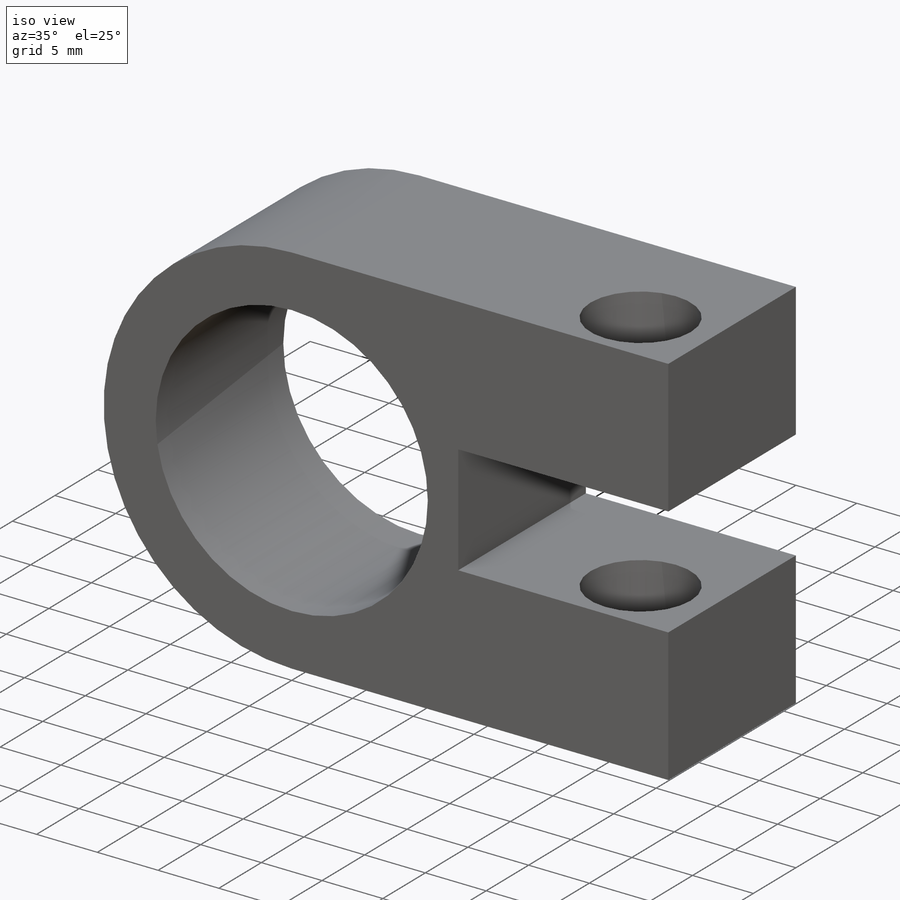
[diagram: iso view]
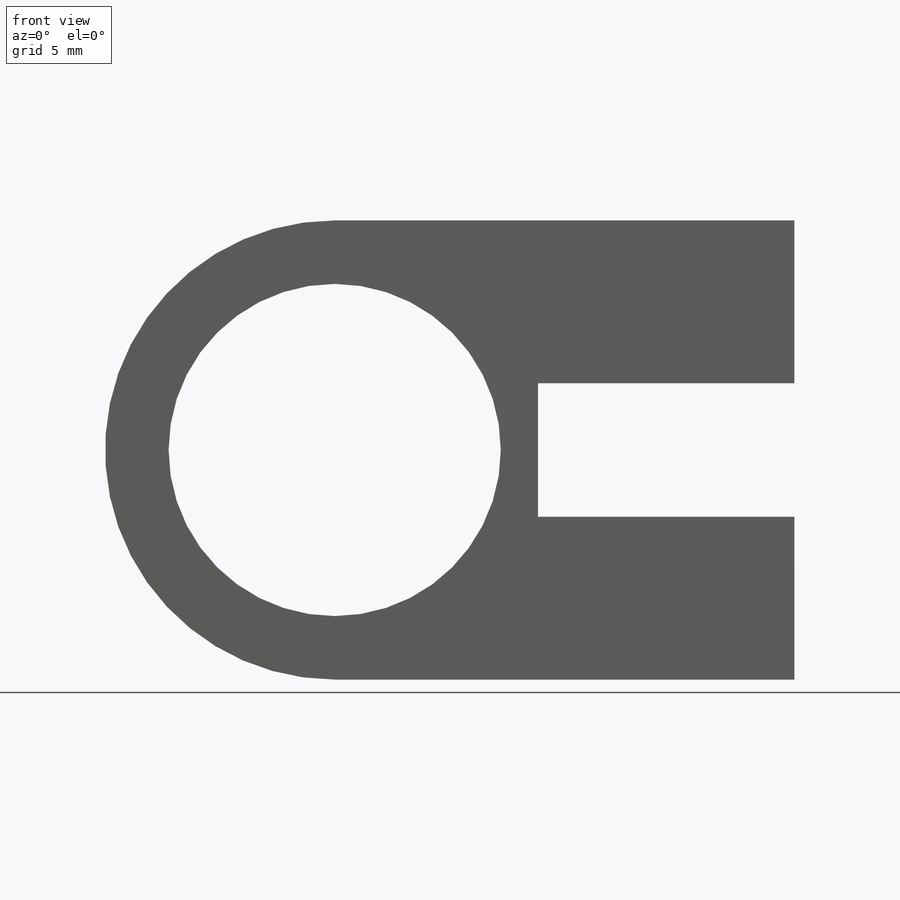
[diagram: front view]
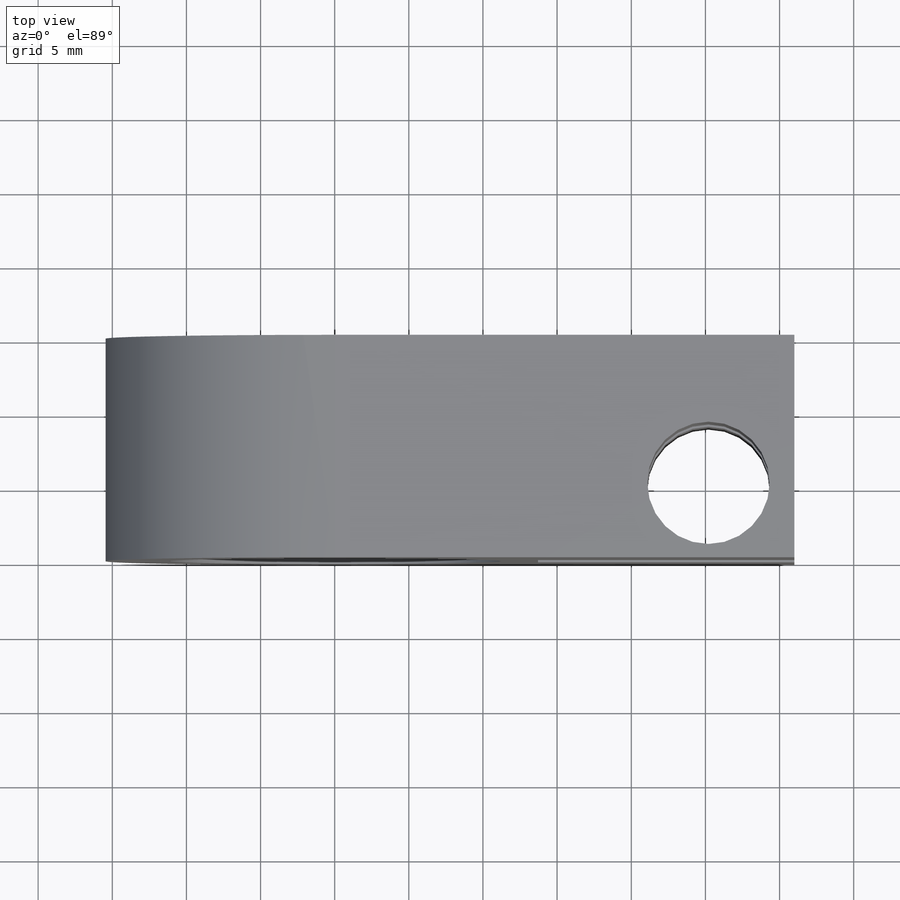
[diagram: top view]
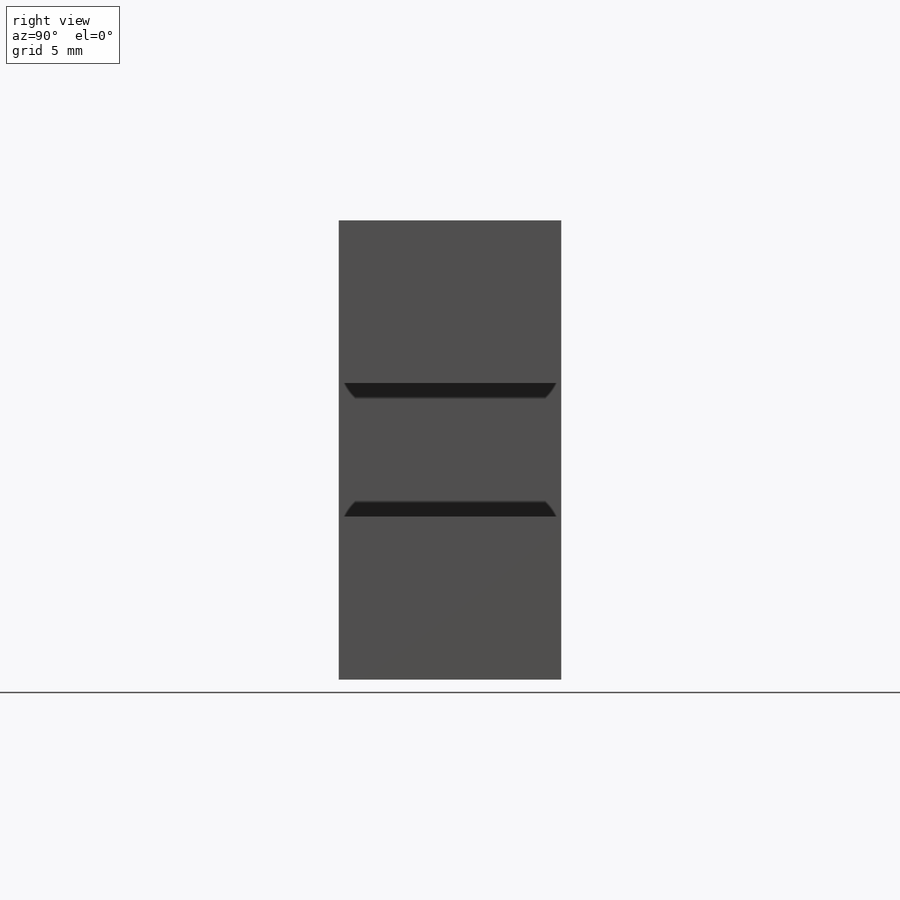
[diagram: right view]
SOLIDWORKS PART (.sldprt)
format: sldprt  version: not decoded by parser v0  size: 180,736 bytes
history: native  units: mm
features: sketch x5, cut_extrude x2, material x1, extrude x1 (+11 scaffold rows collapsed)
feature tree (20):
  scaffold x11  (default folders/planes/origin — collapsed)
  material  "Material <not specified>"
  sketch  "Sketch1"  dims[D1=22.4mm D2=31.0mm]
  extrude  "Boss-Extrude1"  Depth=15mm
  sketch  "Sketch2"  dims[D1=8.25mm]
  cut_extrude  "Cut-Extrude1"  Depth=38mm
  sketch  "Sketch4"
  sketch  "Sketch6"
  sketch  "Sketch7"  dims[D1=11.75mm D2=9.0mm]
  cut_extrude  "Cut-Extrude2"  Depth=38mm
decode coverage: 6 of 8 modeling features carry decoded parameters
note: suppression state not decoded; provenance and decode notes live in map.json
